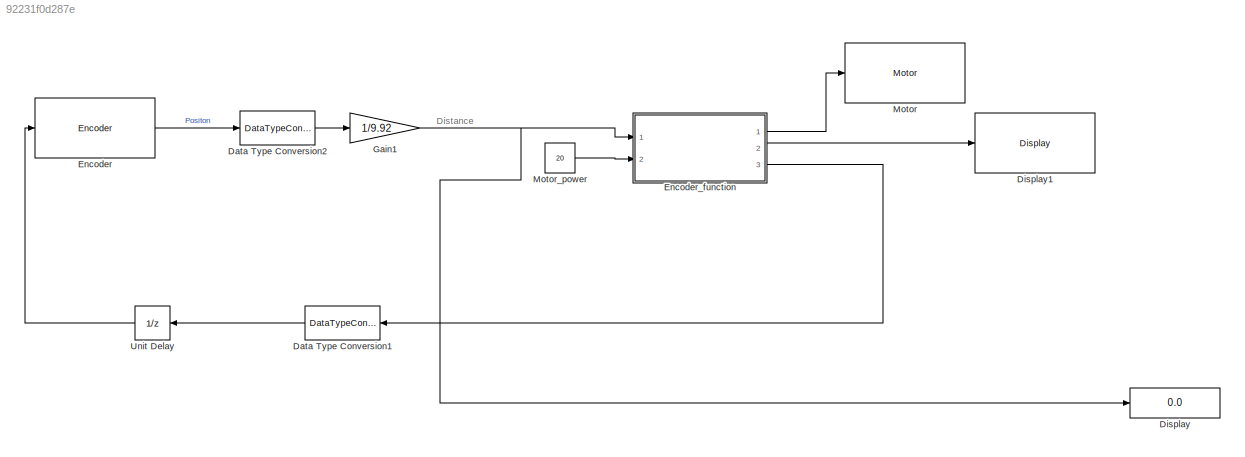
MODEL slx_92231f0d287e
KIND model
CONFIG AbsTol = auto
CONFIG FixedStep = auto
CONFIG MaxStep = auto
CONFIG MinStep = auto
CONFIG RelTol = 1e-3
CONFIG SampleTimeConstraint = Unconstrained
CONFIG Solver = ode45
CONFIG SolverMode = Auto
CONFIG SolverName = ode45
CONFIG StartTime = 0.0
CONFIG StopTime = 10.0
BLOCK [DataTypeConversion] Data Type Conversion1
  RndMeth = Floor
  SaturateOnIntegerOverflow = off
BLOCK [DataTypeConversion] Data Type Conversion2
  RndMeth = Floor
  SaturateOnIntegerOverflow = off
BLOCK [Display] Display
  Decimation = 1
  Ports = [1]
BLOCK [Reference] Display1  REF=legoev3lib/Display
  Ports = [1]
  SourceBlock = legoev3lib/Display
  SourceType = LEGO MINDSTORMS EV3 Display
  slcdFormat = Decimal
  slcdLine = 1
BLOCK [Reference] Encoder  REF=legoev3lib/Encoder
  Ports = [1, 1]
  SourceBlock = legoev3lib/Encoder
  SourceType = LEGO MINDSTORMS EV3 Encoder
  opMode = Reset by external signal
  portNumber = A
  sampleTime = 0.1
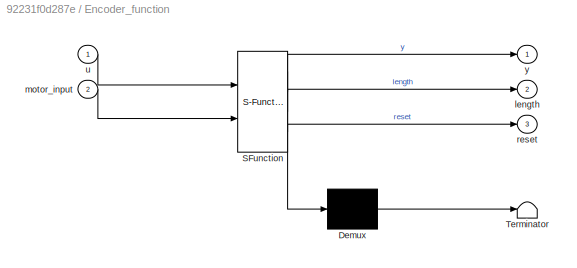
BLOCK [SubSystem] Encoder_function
  ErrorFcn = Stateflow.Translate.translate
  PermitHierarchicalResolution = ExplicitOnly
  Ports = [2, 3]
  RequestExecContextInheritance = off
  SFBlockType = MATLAB Function
  TreatAsAtomicUnit = on
BLOCK [Demux] Encoder_function/ Demux 
  Outputs = 1
  Ports = [1, 1]
BLOCK [S-Function] Encoder_function/ SFunction 
  EnableBusSupport = on
  FunctionName = sf_sfun
  PortCounts = [2 4]
  Ports = [2, 4]
  Tag = Stateflow S-Function testbench_encoder 2
BLOCK [Terminator] Encoder_function/ Terminator 
BLOCK [Outport] Encoder_function/length
  IconDisplay = Port number
  Port = 2
BLOCK [Inport] Encoder_function/motor_input
  IconDisplay = Port number
  Port = 2
BLOCK [Outport] Encoder_function/reset
  IconDisplay = Port number
  Port = 3
BLOCK [Inport] Encoder_function/u
  IconDisplay = Port number
BLOCK [Outport] Encoder_function/y
  IconDisplay = Port number
BLOCK [Gain] Gain1
  Gain = 1/9.92
  OutDataTypeStr = Inherit: Inherit via internal rule
  ParamDataTypeStr = Inherit: Inherit via internal rule
  SaturateOnIntegerOverflow = off
BLOCK [Reference] Motor  REF=legoev3lib/Motor
  Ports = [1]
  SourceBlock = legoev3lib/Motor
  SourceType = LEGO MINDSTORMS EV3 Motor
  sportNumber = A
  sstopAction = Brake
BLOCK [Constant] Motor_power
  Value = 20
BLOCK [UnitDelay] Unit Delay
  InputProcessing = Elements as channels (sample based)
  SampleTime = -1
ANNOTATION (root): Distance
LINE Data Type Conversion1:1 -> Unit Delay:1
LINE Data Type Conversion2:1 -> Gain1:1
LINE Encoder:1 -> Data Type Conversion2:1
LINE Encoder_function:1 -> Motor:1
LINE Encoder_function:2 -> Display1:1
LINE Encoder_function:3 -> Data Type Conversion1:1
NET Gain1:1 -> Display:1, Encoder_function:1
LINE Motor_power:1 -> Encoder_function:2
LINE Unit Delay:1 -> Encoder:1
note: NET lines group one-source signal fan-out (src -> all destinations, sorted); 1:1 wires keep LINE
CHART Encoder_function states=1 transitions=1
  STATE_LABEL 'eML_blk_kernel()'
  STATE_LABEL 'SCRIPT:\nfunction [y,length,reset] = fcn(u,motor_input)\n%#codegen\nstate2=0;\nif(u>=30)&&(u<=35)\n    y=motor_input;\n    length=u;\n    state2=1;\n    reset=1;\nelse\n    y=0;\n    length=u;\n    reset=0;\nend\nend\n'
